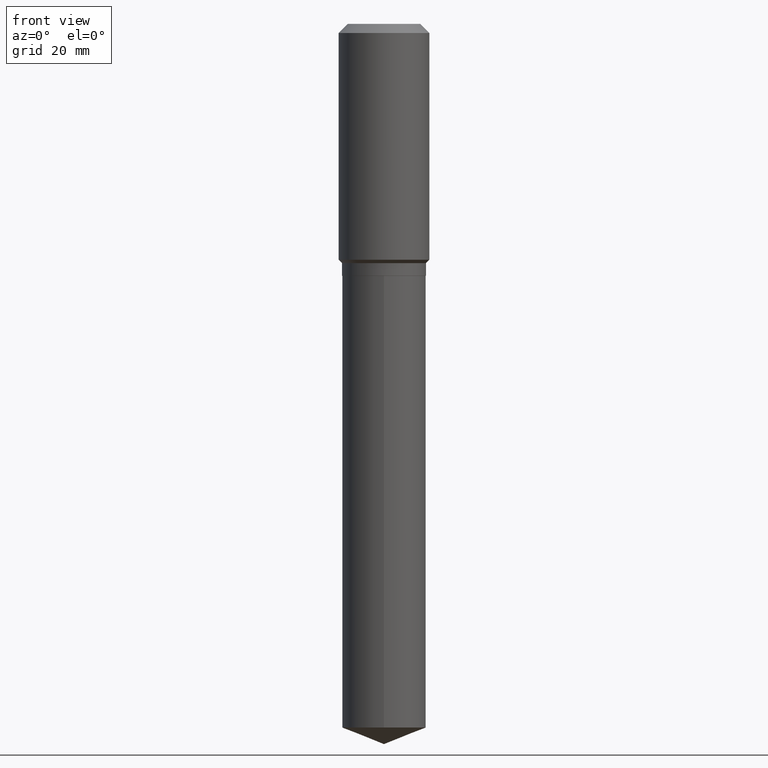
[diagram: clean part render]
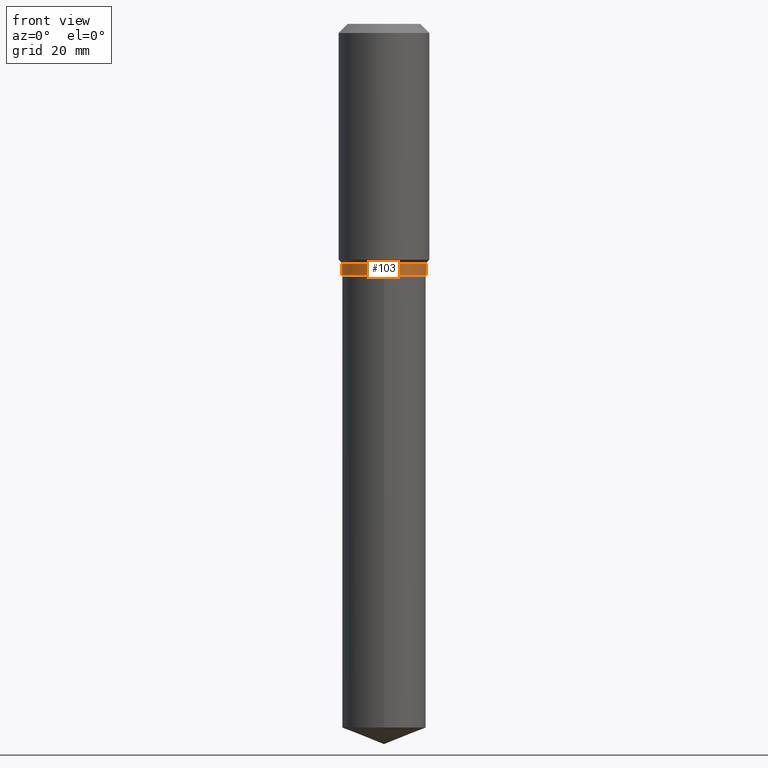
[diagram: same view with one face highlighted and labeled with its STEP entity id]
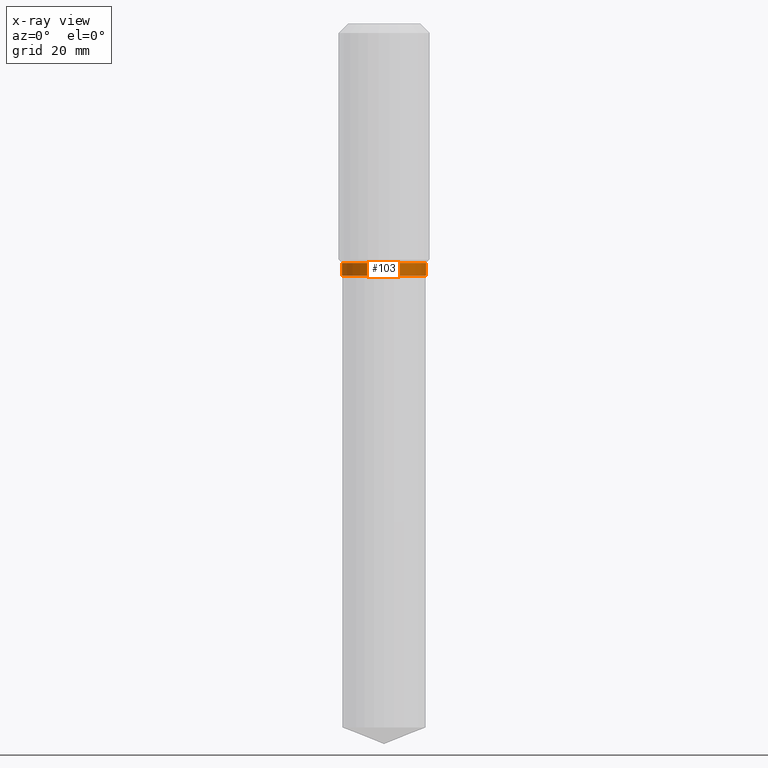
[diagram: x-ray of the same camera — body ghosted, the highlighted face saturated]
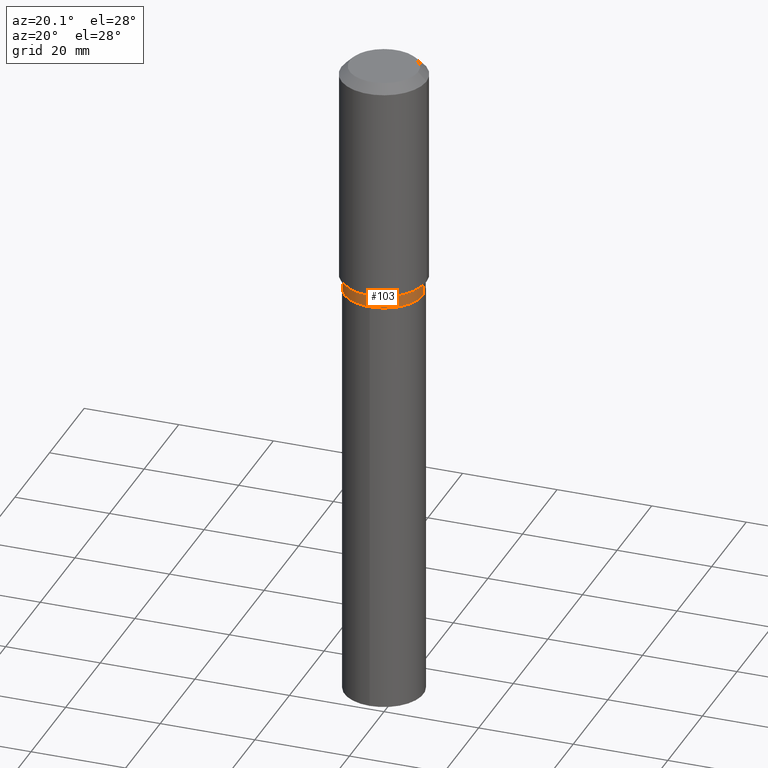
[diagram: same view with one face highlighted and labeled with its STEP entity id]
A machine part, front view. The second image highlights one B-rep face of the part: STEP entity #103.
The next image is the same camera in x-ray: the body ghosted, the highlighted face saturated — about 0% of this face is hidden behind the body in this view.
A second angle (auxiliary view) of the same face is appended — the face is thin or edge-on in the first view.
In plain terms, the highlighted cylindrical surface (partial cylindrical patch) has radius 8.3337 mm, axis along (-0, 0, 1).
Its self-contained STEP definition (entity closure, byte-faithful):
#9 = DIRECTION ( 'NONE',  ( -2.445468806185136597E-29, 3.491481338843145583E-15, 1.000000000000000000 ) ) ;
#18 = CARTESIAN_POINT ( 'NONE',  ( 0.000000000000000000, 0.000000000000000000, 0.000000000000000000 ) ) ;
#32 = CARTESIAN_POINT ( 'NONE',  ( -0.3281000000000000028, -4.369385695411934265E-15, -1.870200000000000085 ) ) ;
#50 = EDGE_LOOP ( 'NONE', ( #482, #124, #385, #426 ) ) ;
#68 = CARTESIAN_POINT ( 'NONE',  ( -0.3281000000000000028, -4.369385695411934265E-15, -1.968099999999999961 ) ) ;
#85 = CARTESIAN_POINT ( 'NONE',  ( 4.812927157452967257E-29, -6.871584422977194504E-15, -1.968099999999999961 ) ) ;
#97 = DIRECTION ( 'NONE',  ( -2.445468806185136877E-29, 3.491481338843145188E-15, 1.000000000000000000 ) ) ;
#103 = ADVANCED_FACE ( 'NONE', ( #169 ), #312, .T. ) ;
#105 = LINE ( 'NONE', #442, #186 ) ;
#109 = AXIS2_PLACEMENT_3D ( 'NONE', #369, #376, #292 ) ;
#119 = CIRCLE ( 'NONE', #273, 0.3281000000000000028 ) ;
#122 = VERTEX_POINT ( 'NONE', #225 ) ;
#124 = ORIENTED_EDGE ( 'NONE', *, *, #279, .T. ) ;
#130 = EDGE_CURVE ( 'NONE', #187, #122, #306, .T. ) ;
#155 = EDGE_CURVE ( 'NONE', #190, #187, #105, .T. ) ;
#169 = FACE_OUTER_BOUND ( 'NONE', #50, .T. ) ;
#186 = VECTOR ( 'NONE', #325, 39.37007874015748143 ) ;
#187 = VERTEX_POINT ( 'NONE', #32 ) ;
#190 = VERTEX_POINT ( 'NONE', #68 ) ;
#225 = CARTESIAN_POINT ( 'NONE',  ( 0.3281000000000000028, -8.820878454453315598E-15, -1.870200000000000085 ) ) ;
#249 = AXIS2_PLACEMENT_3D ( 'NONE', #18, #466, #276 ) ;
#271 = VERTEX_POINT ( 'NONE', #333 ) ;
#273 = AXIS2_PLACEMENT_3D ( 'NONE', #85, #9, #392 ) ;
#276 = DIRECTION ( 'NONE',  ( 1.000000000000000000, -6.982962677686266711E-15, 4.876176775795935232E-29 ) ) ;
#279 = EDGE_CURVE ( 'NONE', #190, #271, #119, .T. ) ;
#288 = LINE ( 'NONE', #440, #388 ) ;
#292 = DIRECTION ( 'NONE',  ( 1.000000000000000000, -6.982962677686266711E-15, 0.000000000000000000 ) ) ;
#306 = CIRCLE ( 'NONE', #109, 0.3281000000000000028 ) ;
#312 = CYLINDRICAL_SURFACE ( 'NONE', #249, 0.3281000000000000028 ) ;
#325 = DIRECTION ( 'NONE',  ( -2.445468806185136877E-29, 3.491481338843145188E-15, 1.000000000000000000 ) ) ;
#333 = CARTESIAN_POINT ( 'NONE',  ( 0.3281000000000000028, -9.162694477526057830E-15, -1.968099999999999961 ) ) ;
#369 = CARTESIAN_POINT ( 'NONE',  ( 4.573515761327442915E-29, -6.529768399904451484E-15, -1.870200000000000085 ) ) ;
#376 = DIRECTION ( 'NONE',  ( -2.445468806185136597E-29, 3.491481338843145583E-15, 1.000000000000000000 ) ) ;
#385 = ORIENTED_EDGE ( 'NONE', *, *, #416, .T. ) ;
#388 = VECTOR ( 'NONE', #97, 39.37007874015748143 ) ;
#392 = DIRECTION ( 'NONE',  ( 1.000000000000000000, -6.982962677686264344E-15, 0.000000000000000000 ) ) ;
#416 = EDGE_CURVE ( 'NONE', #271, #122, #288, .T. ) ;
#426 = ORIENTED_EDGE ( 'NONE', *, *, #130, .F. ) ;
#440 = CARTESIAN_POINT ( 'NONE',  ( 0.3281000000000000028, -2.291110054548864114E-15, 1.599873600138646308E-29 ) ) ;
#442 = CARTESIAN_POINT ( 'NONE',  ( -0.3281000000000000028, 2.331290716028888729E-15, -1.613902603112634433E-29 ) ) ;
#466 = DIRECTION ( 'NONE',  ( -2.445468806185136597E-29, 3.491481338843145583E-15, 1.000000000000000000 ) ) ;
#482 = ORIENTED_EDGE ( 'NONE', *, *, #155, .F. ) ;